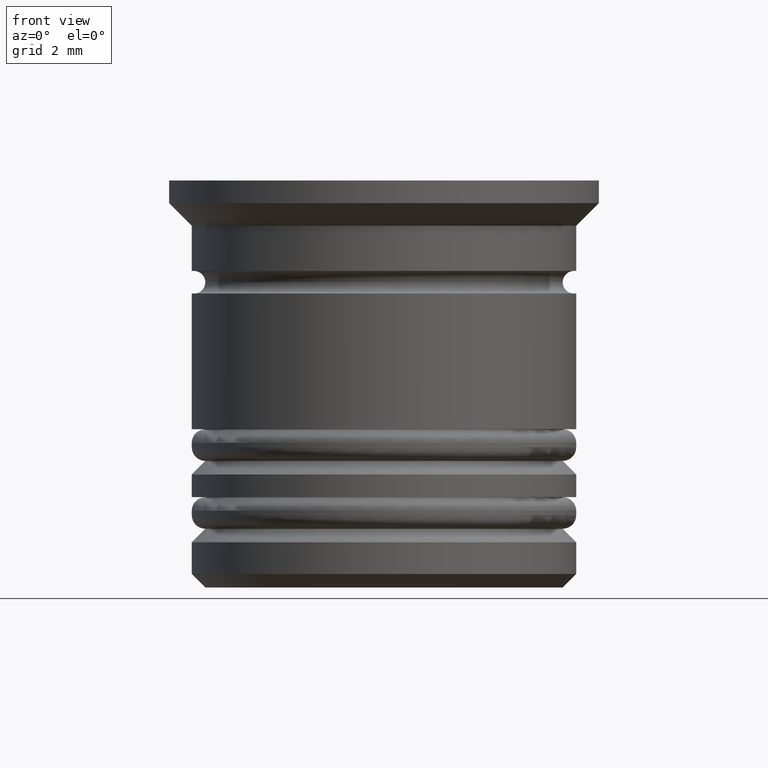
[diagram: clean part render]
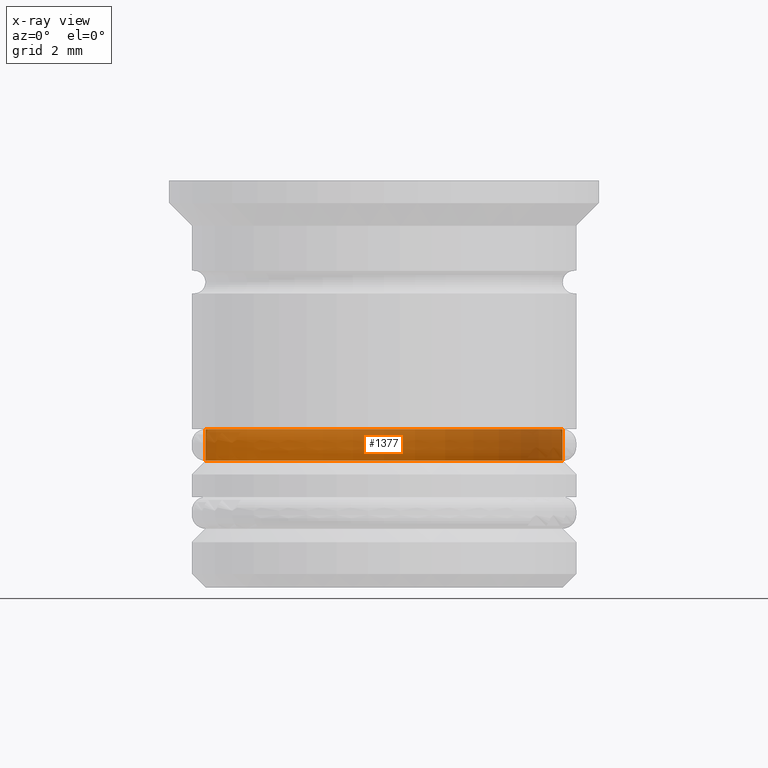
[diagram: x-ray — body ghosted, one internal face saturated and labeled with its STEP entity id]
A machine part, front view, then the same camera in x-ray: the body is ghosted and one INTERNAL B-rep face — a face not visible from any outside direction — is saturated and labeled: STEP entity #1377.
In plain terms, the highlighted cylindrical surface (partial cylindrical patch) has radius 3.95 mm, axis along (-0, -0, 1).
Its self-contained STEP definition (entity closure, byte-faithful):
#81 = CIRCLE ( 'NONE', #1238, 3.950000000000000178 ) ;
#98 = DIRECTION ( 'NONE',  ( -0.000000000000000000, -0.000000000000000000, 1.000000000000000000 ) ) ;
#101 = VERTEX_POINT ( 'NONE', #1638 ) ;
#103 = CARTESIAN_POINT ( 'NONE',  ( 3.950000000000000178, 0.000000000000000000, 0.000000000000000000 ) ) ;
#104 = DIRECTION ( 'NONE',  ( 1.000000000000000000, 0.000000000000000000, 0.000000000000000000 ) ) ;
#121 = AXIS2_PLACEMENT_3D ( 'NONE', #1160, #1779, #1474 ) ;
#356 = CARTESIAN_POINT ( 'NONE',  ( -3.950000000000000178, 4.837354856632045057E-16, 0.000000000000000000 ) ) ;
#386 = ORIENTED_EDGE ( 'NONE', *, *, #840, .F. ) ;
#457 = EDGE_CURVE ( 'NONE', #1874, #2035, #1506, .T. ) ;
#527 = CYLINDRICAL_SURFACE ( 'NONE', #121, 3.950000000000000178 ) ;
#677 = CARTESIAN_POINT ( 'NONE',  ( -3.950000000000000178, 4.837354856632045057E-16, -6.200000000000004619 ) ) ;
#730 = CARTESIAN_POINT ( 'NONE',  ( 0.000000000000000000, 0.000000000000000000, -6.200000000000004619 ) ) ;
#798 = VECTOR ( 'NONE', #1984, 1000.000000000000000 ) ;
#805 = CARTESIAN_POINT ( 'NONE',  ( 3.950000000000000178, 0.000000000000000000, -6.200000000000004619 ) ) ;
#840 = EDGE_CURVE ( 'NONE', #2035, #101, #81, .T. ) ;
#964 = CIRCLE ( 'NONE', #1121, 3.950000000000000178 ) ;
#1010 = ORIENTED_EDGE ( 'NONE', *, *, #1919, .T. ) ;
#1012 = DIRECTION ( 'NONE',  ( -0.000000000000000000, -0.000000000000000000, 1.000000000000000000 ) ) ;
#1064 = ORIENTED_EDGE ( 'NONE', *, *, #457, .F. ) ;
#1092 = EDGE_LOOP ( 'NONE', ( #1848, #1010, #386, #1064 ) ) ;
#1121 = AXIS2_PLACEMENT_3D ( 'NONE', #730, #1983, #1347 ) ;
#1160 = CARTESIAN_POINT ( 'NONE',  ( 0.000000000000000000, 0.000000000000000000, 0.000000000000000000 ) ) ;
#1238 = AXIS2_PLACEMENT_3D ( 'NONE', #1507, #98, #104 ) ;
#1347 = DIRECTION ( 'NONE',  ( -1.000000000000000000, 0.000000000000000000, 0.000000000000000000 ) ) ;
#1377 = ADVANCED_FACE ( 'NONE', ( #1947 ), #527, .T. ) ;
#1400 = EDGE_CURVE ( 'NONE', #1874, #1435, #964, .T. ) ;
#1435 = VERTEX_POINT ( 'NONE', #677 ) ;
#1438 = LINE ( 'NONE', #356, #1998 ) ;
#1474 = DIRECTION ( 'NONE',  ( 1.000000000000000000, 0.000000000000000000, 0.000000000000000000 ) ) ;
#1506 = LINE ( 'NONE', #103, #798 ) ;
#1507 = CARTESIAN_POINT ( 'NONE',  ( 0.000000000000000000, 0.000000000000000000, -5.499999999999999112 ) ) ;
#1565 = CARTESIAN_POINT ( 'NONE',  ( 3.950000000000000178, 0.000000000000000000, -5.499999999999999112 ) ) ;
#1638 = CARTESIAN_POINT ( 'NONE',  ( -3.950000000000000178, 4.837354856632045057E-16, -5.499999999999999112 ) ) ;
#1779 = DIRECTION ( 'NONE',  ( -0.000000000000000000, -0.000000000000000000, 1.000000000000000000 ) ) ;
#1848 = ORIENTED_EDGE ( 'NONE', *, *, #1400, .T. ) ;
#1874 = VERTEX_POINT ( 'NONE', #805 ) ;
#1919 = EDGE_CURVE ( 'NONE', #1435, #101, #1438, .T. ) ;
#1947 = FACE_OUTER_BOUND ( 'NONE', #1092, .T. ) ;
#1983 = DIRECTION ( 'NONE',  ( -0.000000000000000000, -0.000000000000000000, 1.000000000000000000 ) ) ;
#1984 = DIRECTION ( 'NONE',  ( -0.000000000000000000, -0.000000000000000000, 1.000000000000000000 ) ) ;
#1998 = VECTOR ( 'NONE', #1012, 1000.000000000000000 ) ;
#2035 = VERTEX_POINT ( 'NONE', #1565 ) ;